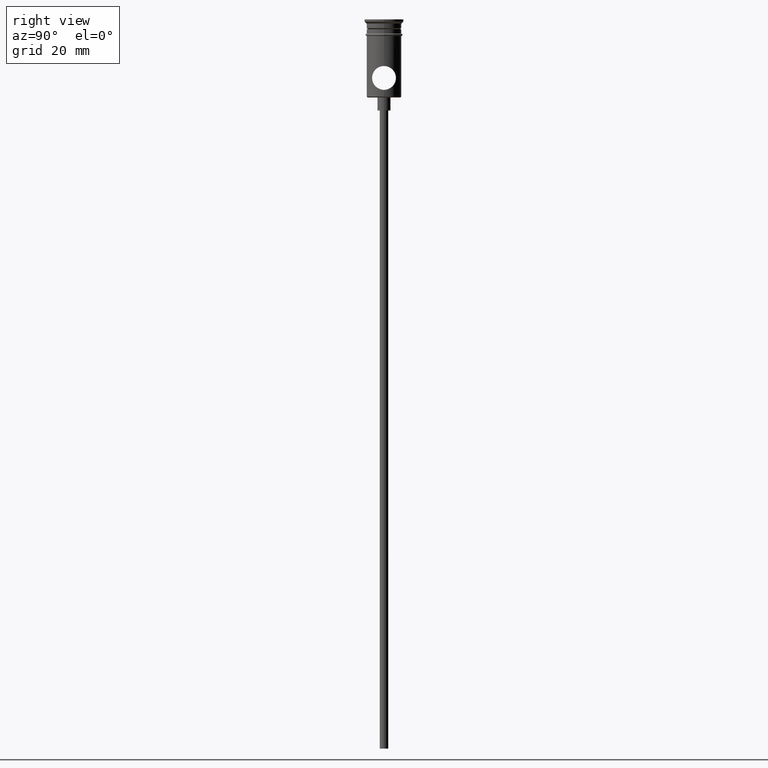
[diagram: clean part render]
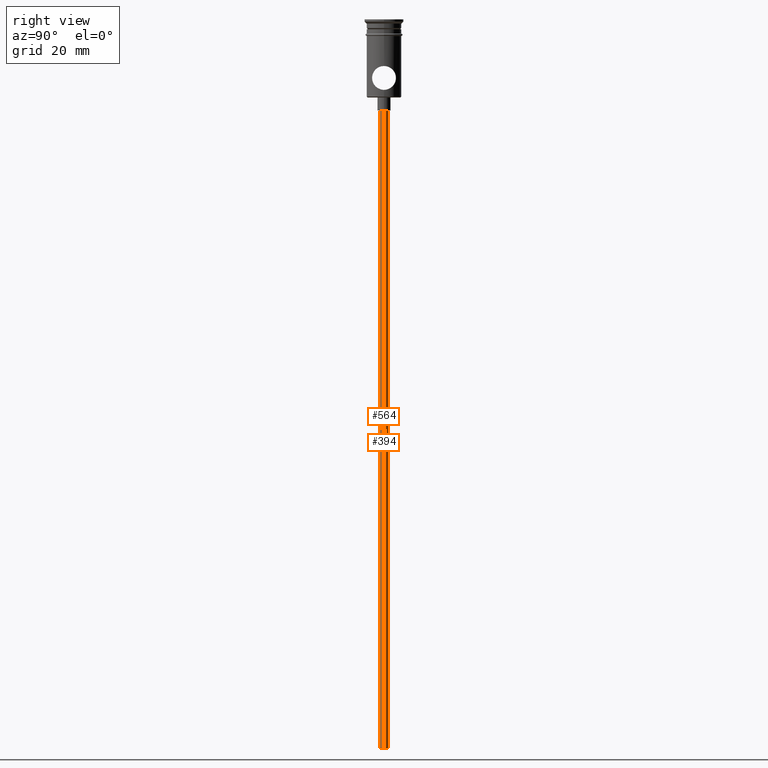
[diagram: same view with one multi-face feature highlighted, each face labeled with its STEP entity id]
A machine part, right view. The highlighted faces form ONE feature: a constant-radius fillet chain: 2 tangent blend faces with common blend radius 1 mm. The faces share edges in the B-rep.
Their STEP definitions:
[1] entity #564 (Cylinder):
#52 = EDGE_CURVE ( 'NONE', #69, #387, #615, .T. ) ;
#69 = VERTEX_POINT ( 'NONE', #208 ) ;
#95 = DIRECTION ( 'NONE',  ( -0.000000000000000000, -0.000000000000000000, 1.000000000000000000 ) ) ;
#98 = CARTESIAN_POINT ( 'NONE',  ( 0.000000000000000000, 0.000000000000000000, -167.9999999999999716 ) ) ;
#134 = DIRECTION ( 'NONE',  ( 0.000000000000000000, 0.000000000000000000, -1.000000000000000000 ) ) ;
#175 = DIRECTION ( 'NONE',  ( 0.000000000000000000, 0.000000000000000000, -1.000000000000000000 ) ) ;
#208 = CARTESIAN_POINT ( 'NONE',  ( -0.9999999999999997780, 1.224646799147352961E-16, -167.9999999999999716 ) ) ;
#212 = CARTESIAN_POINT ( 'NONE',  ( 0.000000000000000000, 0.000000000000000000, -20.99999999999999645 ) ) ;
#281 = DIRECTION ( 'NONE',  ( 1.000000000000000000, 0.000000000000000000, 0.000000000000000000 ) ) ;
#307 = EDGE_CURVE ( 'NONE', #1356, #1298, #1153, .T. ) ;
#317 = CIRCLE ( 'NONE', #1244, 0.9999999999999997780 ) ;
#385 = EDGE_CURVE ( 'NONE', #1298, #387, #590, .T. ) ;
#387 = VERTEX_POINT ( 'NONE', #990 ) ;
#406 = FACE_OUTER_BOUND ( 'NONE', #1039, .T. ) ;
#507 = EDGE_CURVE ( 'NONE', #1356, #69, #317, .T. ) ;
#517 = CARTESIAN_POINT ( 'NONE',  ( 0.9999999999999997780, 0.000000000000000000, -20.99999999999999645 ) ) ;
#524 = AXIS2_PLACEMENT_3D ( 'NONE', #212, #134, #1195 ) ;
#525 = DIRECTION ( 'NONE',  ( -1.000000000000000000, 0.000000000000000000, 0.000000000000000000 ) ) ;
#564 = ADVANCED_FACE ( 'NONE', ( #406 ), #1255, .T. ) ;
#573 = ORIENTED_EDGE ( 'NONE', *, *, #307, .T. ) ;
#590 = CIRCLE ( 'NONE', #524, 0.9999999999999997780 ) ;
#604 = DIRECTION ( 'NONE',  ( -0.000000000000000000, -0.000000000000000000, 1.000000000000000000 ) ) ;
#615 = LINE ( 'NONE', #1392, #1024 ) ;
#755 = ORIENTED_EDGE ( 'NONE', *, *, #385, .T. ) ;
#784 = CARTESIAN_POINT ( 'NONE',  ( 0.9999999999999997780, 0.000000000000000000, -167.9999999999999716 ) ) ;
#843 = DIRECTION ( 'NONE',  ( -0.000000000000000000, -0.000000000000000000, 1.000000000000000000 ) ) ;
#861 = VECTOR ( 'NONE', #95, 1000.000000000000000 ) ;
#880 = ORIENTED_EDGE ( 'NONE', *, *, #52, .F. ) ;
#990 = CARTESIAN_POINT ( 'NONE',  ( -0.9999999999999997780, 1.224646799147352961E-16, -20.99999999999999645 ) ) ;
#1000 = ORIENTED_EDGE ( 'NONE', *, *, #507, .F. ) ;
#1024 = VECTOR ( 'NONE', #843, 1000.000000000000000 ) ;
#1039 = EDGE_LOOP ( 'NONE', ( #880, #1000, #573, #755 ) ) ;
#1050 = CARTESIAN_POINT ( 'NONE',  ( 0.9999999999999997780, 0.000000000000000000, -167.9999999999999716 ) ) ;
#1150 = CARTESIAN_POINT ( 'NONE',  ( 0.000000000000000000, 0.000000000000000000, -167.9999999999999716 ) ) ;
#1153 = LINE ( 'NONE', #1050, #861 ) ;
#1195 = DIRECTION ( 'NONE',  ( -1.000000000000000000, 0.000000000000000000, 0.000000000000000000 ) ) ;
#1244 = AXIS2_PLACEMENT_3D ( 'NONE', #98, #175, #525 ) ;
#1255 = CYLINDRICAL_SURFACE ( 'NONE', #1290, 0.9999999999999997780 ) ;
#1290 = AXIS2_PLACEMENT_3D ( 'NONE', #1150, #604, #281 ) ;
#1298 = VERTEX_POINT ( 'NONE', #517 ) ;
#1356 = VERTEX_POINT ( 'NONE', #784 ) ;
#1392 = CARTESIAN_POINT ( 'NONE',  ( -0.9999999999999997780, 1.224646799147352961E-16, -167.9999999999999716 ) ) ;
[2] entity #394 (Cylinder):
#51 = AXIS2_PLACEMENT_3D ( 'NONE', #1330, #756, #215 ) ;
#52 = EDGE_CURVE ( 'NONE', #69, #387, #615, .T. ) ;
#69 = VERTEX_POINT ( 'NONE', #208 ) ;
#75 = DIRECTION ( 'NONE',  ( 0.000000000000000000, 0.000000000000000000, -1.000000000000000000 ) ) ;
#95 = DIRECTION ( 'NONE',  ( -0.000000000000000000, -0.000000000000000000, 1.000000000000000000 ) ) ;
#137 = ORIENTED_EDGE ( 'NONE', *, *, #52, .T. ) ;
#205 = CARTESIAN_POINT ( 'NONE',  ( 0.000000000000000000, 0.000000000000000000, -167.9999999999999716 ) ) ;
#208 = CARTESIAN_POINT ( 'NONE',  ( -0.9999999999999997780, 1.224646799147352961E-16, -167.9999999999999716 ) ) ;
#215 = DIRECTION ( 'NONE',  ( -1.000000000000000000, 0.000000000000000000, 0.000000000000000000 ) ) ;
#224 = CYLINDRICAL_SURFACE ( 'NONE', #278, 0.9999999999999997780 ) ;
#278 = AXIS2_PLACEMENT_3D ( 'NONE', #546, #1321, #1078 ) ;
#296 = DIRECTION ( 'NONE',  ( -1.000000000000000000, 0.000000000000000000, 0.000000000000000000 ) ) ;
#304 = ORIENTED_EDGE ( 'NONE', *, *, #482, .F. ) ;
#307 = EDGE_CURVE ( 'NONE', #1356, #1298, #1153, .T. ) ;
#387 = VERTEX_POINT ( 'NONE', #990 ) ;
#394 = ADVANCED_FACE ( 'NONE', ( #670 ), #224, .T. ) ;
#398 = EDGE_CURVE ( 'NONE', #387, #1298, #699, .T. ) ;
#482 = EDGE_CURVE ( 'NONE', #69, #1356, #994, .T. ) ;
#517 = CARTESIAN_POINT ( 'NONE',  ( 0.9999999999999997780, 0.000000000000000000, -20.99999999999999645 ) ) ;
#546 = CARTESIAN_POINT ( 'NONE',  ( 0.000000000000000000, 0.000000000000000000, -167.9999999999999716 ) ) ;
#577 = ORIENTED_EDGE ( 'NONE', *, *, #307, .F. ) ;
#615 = LINE ( 'NONE', #1392, #1024 ) ;
#670 = FACE_OUTER_BOUND ( 'NONE', #1110, .T. ) ;
#699 = CIRCLE ( 'NONE', #51, 0.9999999999999997780 ) ;
#756 = DIRECTION ( 'NONE',  ( 0.000000000000000000, 0.000000000000000000, -1.000000000000000000 ) ) ;
#784 = CARTESIAN_POINT ( 'NONE',  ( 0.9999999999999997780, 0.000000000000000000, -167.9999999999999716 ) ) ;
#843 = DIRECTION ( 'NONE',  ( -0.000000000000000000, -0.000000000000000000, 1.000000000000000000 ) ) ;
#861 = VECTOR ( 'NONE', #95, 1000.000000000000000 ) ;
#921 = AXIS2_PLACEMENT_3D ( 'NONE', #205, #75, #296 ) ;
#990 = CARTESIAN_POINT ( 'NONE',  ( -0.9999999999999997780, 1.224646799147352961E-16, -20.99999999999999645 ) ) ;
#994 = CIRCLE ( 'NONE', #921, 0.9999999999999997780 ) ;
#1024 = VECTOR ( 'NONE', #843, 1000.000000000000000 ) ;
#1050 = CARTESIAN_POINT ( 'NONE',  ( 0.9999999999999997780, 0.000000000000000000, -167.9999999999999716 ) ) ;
#1074 = ORIENTED_EDGE ( 'NONE', *, *, #398, .T. ) ;
#1078 = DIRECTION ( 'NONE',  ( 1.000000000000000000, 0.000000000000000000, 0.000000000000000000 ) ) ;
#1110 = EDGE_LOOP ( 'NONE', ( #304, #137, #1074, #577 ) ) ;
#1153 = LINE ( 'NONE', #1050, #861 ) ;
#1298 = VERTEX_POINT ( 'NONE', #517 ) ;
#1321 = DIRECTION ( 'NONE',  ( -0.000000000000000000, -0.000000000000000000, 1.000000000000000000 ) ) ;
#1330 = CARTESIAN_POINT ( 'NONE',  ( 0.000000000000000000, 0.000000000000000000, -20.99999999999999645 ) ) ;
#1356 = VERTEX_POINT ( 'NONE', #784 ) ;
#1392 = CARTESIAN_POINT ( 'NONE',  ( -0.9999999999999997780, 1.224646799147352961E-16, -167.9999999999999716 ) ) ;